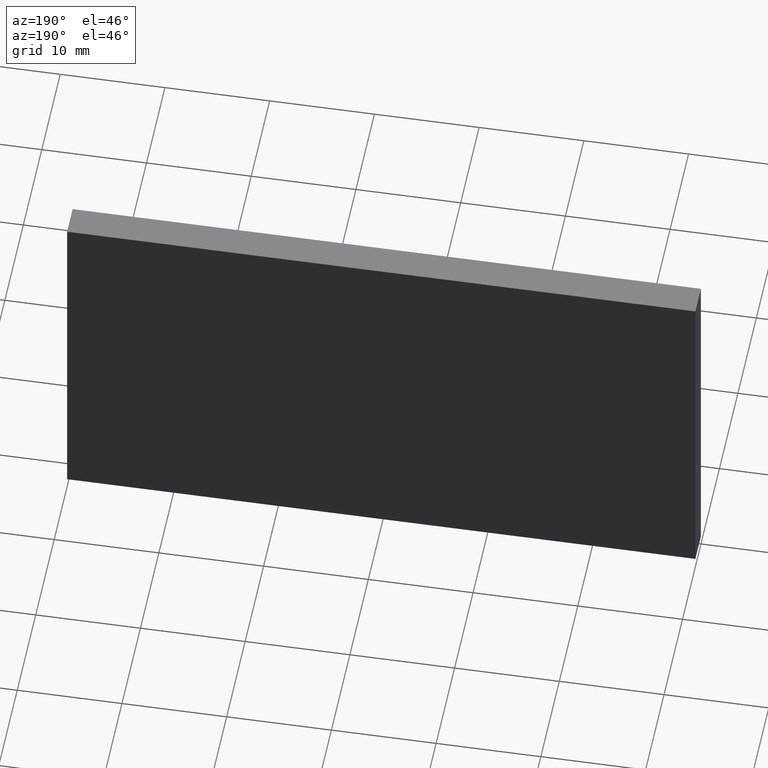
[diagram: clean part render]
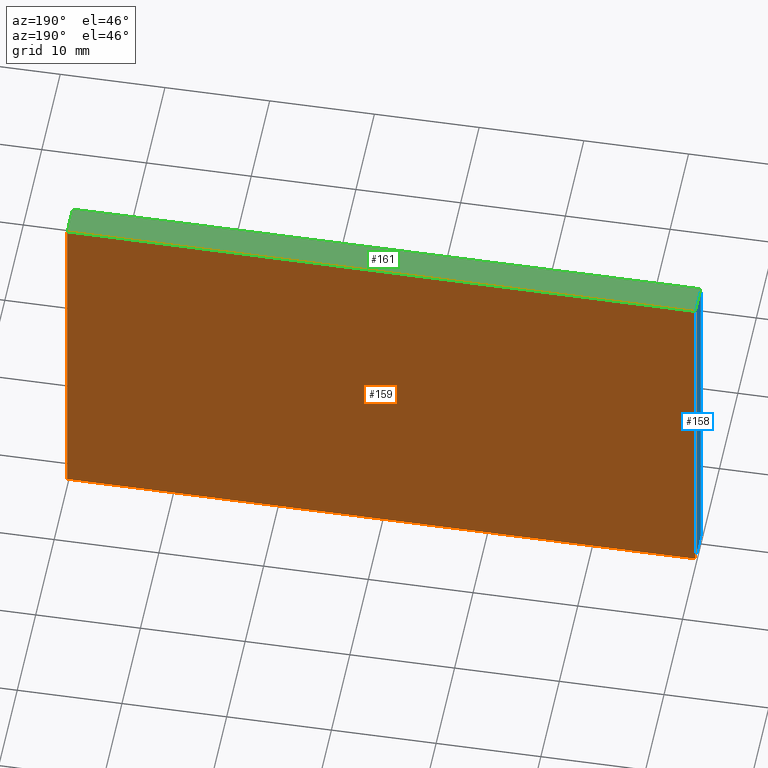
[diagram: same view with three faces highlighted in distinct colors, each labeled with its STEP entity id]
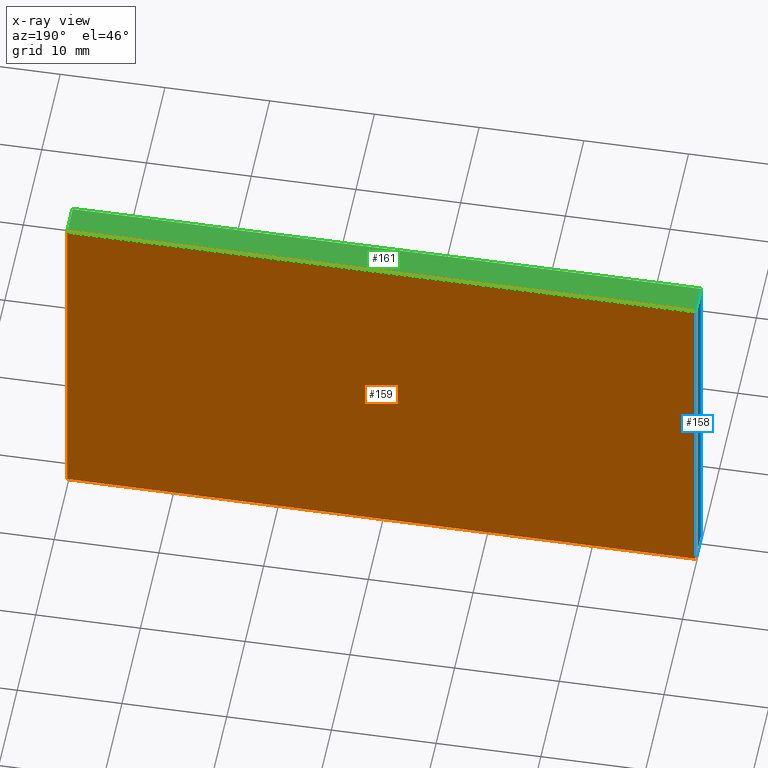
[diagram: x-ray of the same camera — body ghosted, the three highlighted faces saturated]
A machine part, auxiliary view with three faces highlighted in distinct colors.
The next image is the same camera in x-ray (body ghosted, the three faces saturated) — at least one of them is partly hidden behind the body in this view.
Their STEP definitions:

[orange] entity #159 — the highlighted planar face has unit normal (-0, 1, 0).
#8 = EDGE_CURVE ( 'NONE', #253, #226, #90, .T. ) ;
#20 = AXIS2_PLACEMENT_3D ( 'NONE', #184, #185, #196 ) ;
#22 = EDGE_CURVE ( 'NONE', #252, #253, #104, .T. ) ;
#27 = EDGE_CURVE ( 'NONE', #226, #240, #106, .T. ) ;
#31 = EDGE_CURVE ( 'NONE', #240, #252, #97, .T. ) ;
#77 = ORIENTED_EDGE ( 'NONE', *, *, #31, .T. ) ;
#79 = ORIENTED_EDGE ( 'NONE', *, *, #8, .T. ) ;
#89 = EDGE_LOOP ( 'NONE', ( #119, #77, #140, #79 ) ) ;
#90 = LINE ( 'NONE', #251, #96 ) ;
#96 = VECTOR ( 'NONE', #241, 1000.000000000000000 ) ;
#97 = LINE ( 'NONE', #258, #110 ) ;
#104 = LINE ( 'NONE', #217, #105 ) ;
#105 = VECTOR ( 'NONE', #218, 1000.000000000000000 ) ;
#106 = LINE ( 'NONE', #234, #107 ) ;
#107 = VECTOR ( 'NONE', #248, 1000.000000000000000 ) ;
#110 = VECTOR ( 'NONE', #229, 1000.000000000000000 ) ;
#119 = ORIENTED_EDGE ( 'NONE', *, *, #27, .T. ) ;
#130 = FACE_OUTER_BOUND ( 'NONE', #89, .T. ) ;
#140 = ORIENTED_EDGE ( 'NONE', *, *, #22, .T. ) ;
#159 = ADVANCED_FACE ( 'NONE', ( #130 ), #275, .T. ) ;
#174 = CARTESIAN_POINT ( 'NONE',  ( 30.00000000000000000, 3.000000000000000000, 16.75000000000000000 ) ) ;
#184 = CARTESIAN_POINT ( 'NONE',  ( 0.0000000000000000000, 3.000000000000000000, 0.0000000000000000000 ) ) ;
#185 = DIRECTION ( 'NONE',  ( -0.0000000000000000000, 1.000000000000000000, 0.0000000000000000000 ) ) ;
#196 = DIRECTION ( 'NONE',  ( 0.0000000000000000000, -0.0000000000000000000, 1.000000000000000000 ) ) ;
#206 = CARTESIAN_POINT ( 'NONE',  ( -30.00000000000000000, 3.000000000000000000, 16.75000000000000000 ) ) ;
#208 = CARTESIAN_POINT ( 'NONE',  ( -30.00000000000000000, 3.000000000000000000, -16.75000000000000000 ) ) ;
#209 = CARTESIAN_POINT ( 'NONE',  ( 30.00000000000000000, 3.000000000000000000, -16.75000000000000000 ) ) ;
#217 = CARTESIAN_POINT ( 'NONE',  ( -30.00000000000000000, 3.000000000000000000, 0.0000000000000000000 ) ) ;
#218 = DIRECTION ( 'NONE',  ( 0.0000000000000000000, -0.0000000000000000000, 1.000000000000000000 ) ) ;
#226 = VERTEX_POINT ( 'NONE', #174 ) ;
#229 = DIRECTION ( 'NONE',  ( -1.000000000000000000, -0.0000000000000000000, -0.0000000000000000000 ) ) ;
#234 = CARTESIAN_POINT ( 'NONE',  ( 30.00000000000000000, 3.000000000000000000, 0.0000000000000000000 ) ) ;
#240 = VERTEX_POINT ( 'NONE', #209 ) ;
#241 = DIRECTION ( 'NONE',  ( 1.000000000000000000, 0.0000000000000000000, 0.0000000000000000000 ) ) ;
#248 = DIRECTION ( 'NONE',  ( -0.0000000000000000000, 0.0000000000000000000, -1.000000000000000000 ) ) ;
#251 = CARTESIAN_POINT ( 'NONE',  ( 0.0000000000000000000, 3.000000000000000000, 16.75000000000000000 ) ) ;
#252 = VERTEX_POINT ( 'NONE', #208 ) ;
#253 = VERTEX_POINT ( 'NONE', #206 ) ;
#258 = CARTESIAN_POINT ( 'NONE',  ( 0.0000000000000000000, 3.000000000000000000, -16.75000000000000000 ) ) ;
#275 = PLANE ( 'NONE',  #20 ) ;

[blue] entity #158 — the highlighted planar face has unit normal (1, 0, 0).
#1 = EDGE_CURVE ( 'NONE', #252, #242, #93, .T. ) ;
#7 = AXIS2_PLACEMENT_3D ( 'NONE', #289, #180, #189 ) ;
#12 = EDGE_CURVE ( 'NONE', #257, #242, #91, .T. ) ;
#21 = EDGE_CURVE ( 'NONE', #257, #253, #102, .T. ) ;
#22 = EDGE_CURVE ( 'NONE', #252, #253, #104, .T. ) ;
#42 = FACE_OUTER_BOUND ( 'NONE', #86, .T. ) ;
#67 = ORIENTED_EDGE ( 'NONE', *, *, #21, .T. ) ;
#69 = ORIENTED_EDGE ( 'NONE', *, *, #12, .F. ) ;
#71 = ORIENTED_EDGE ( 'NONE', *, *, #1, .T. ) ;
#86 = EDGE_LOOP ( 'NONE', ( #67, #92, #71, #69 ) ) ;
#91 = LINE ( 'NONE', #264, #98 ) ;
#92 = ORIENTED_EDGE ( 'NONE', *, *, #22, .F. ) ;
#93 = LINE ( 'NONE', #225, #94 ) ;
#94 = VECTOR ( 'NONE', #254, 1000.000000000000000 ) ;
#98 = VECTOR ( 'NONE', #249, 1000.000000000000000 ) ;
#102 = LINE ( 'NONE', #259, #103 ) ;
#103 = VECTOR ( 'NONE', #292, 1000.000000000000000 ) ;
#104 = LINE ( 'NONE', #217, #105 ) ;
#105 = VECTOR ( 'NONE', #218, 1000.000000000000000 ) ;
#158 = ADVANCED_FACE ( 'NONE', ( #42 ), #186, .F. ) ;
#180 = DIRECTION ( 'NONE',  ( 1.000000000000000000, 0.0000000000000000000, 0.0000000000000000000 ) ) ;
#186 = PLANE ( 'NONE',  #7 ) ;
#189 = DIRECTION ( 'NONE',  ( 0.0000000000000000000, 0.0000000000000000000, -1.000000000000000000 ) ) ;
#206 = CARTESIAN_POINT ( 'NONE',  ( -30.00000000000000000, 3.000000000000000000, 16.75000000000000000 ) ) ;
#208 = CARTESIAN_POINT ( 'NONE',  ( -30.00000000000000000, 3.000000000000000000, -16.75000000000000000 ) ) ;
#217 = CARTESIAN_POINT ( 'NONE',  ( -30.00000000000000000, 3.000000000000000000, 0.0000000000000000000 ) ) ;
#218 = DIRECTION ( 'NONE',  ( 0.0000000000000000000, -0.0000000000000000000, 1.000000000000000000 ) ) ;
#225 = CARTESIAN_POINT ( 'NONE',  ( -30.00000000000000000, 3.000000000000000000, -16.75000000000000000 ) ) ;
#242 = VERTEX_POINT ( 'NONE', #283 ) ;
#249 = DIRECTION ( 'NONE',  ( 0.0000000000000000000, 0.0000000000000000000, -1.000000000000000000 ) ) ;
#252 = VERTEX_POINT ( 'NONE', #208 ) ;
#253 = VERTEX_POINT ( 'NONE', #206 ) ;
#254 = DIRECTION ( 'NONE',  ( 0.0000000000000000000, -1.000000000000000000, -0.0000000000000000000 ) ) ;
#257 = VERTEX_POINT ( 'NONE', #277 ) ;
#259 = CARTESIAN_POINT ( 'NONE',  ( -30.00000000000000000, 3.000000000000000000, 16.75000000000000000 ) ) ;
#264 = CARTESIAN_POINT ( 'NONE',  ( -30.00000000000000000, 0.0000000000000000000, -16.75000000000000000 ) ) ;
#277 = CARTESIAN_POINT ( 'NONE',  ( -30.00000000000000000, 0.0000000000000000000, 16.75000000000000000 ) ) ;
#283 = CARTESIAN_POINT ( 'NONE',  ( -30.00000000000000000, 0.0000000000000000000, -16.75000000000000000 ) ) ;
#289 = CARTESIAN_POINT ( 'NONE',  ( -30.00000000000000000, 3.000000000000000000, -16.75000000000000000 ) ) ;
#292 = DIRECTION ( 'NONE',  ( 0.0000000000000000000, 1.000000000000000000, 0.0000000000000000000 ) ) ;

[green] entity #161 — the highlighted planar face has unit normal (0, 0, -1).
#2 = AXIS2_PLACEMENT_3D ( 'NONE', #235, #282, #267 ) ;
#8 = EDGE_CURVE ( 'NONE', #253, #226, #90, .T. ) ;
#21 = EDGE_CURVE ( 'NONE', #257, #253, #102, .T. ) ;
#29 = EDGE_CURVE ( 'NONE', #255, #226, #108, .T. ) ;
#32 = EDGE_CURVE ( 'NONE', #255, #257, #111, .T. ) ;
#50 = ORIENTED_EDGE ( 'NONE', *, *, #29, .T. ) ;
#70 = ORIENTED_EDGE ( 'NONE', *, *, #8, .F. ) ;
#72 = ORIENTED_EDGE ( 'NONE', *, *, #32, .F. ) ;
#81 = ORIENTED_EDGE ( 'NONE', *, *, #21, .F. ) ;
#84 = EDGE_LOOP ( 'NONE', ( #50, #70, #81, #72 ) ) ;
#90 = LINE ( 'NONE', #251, #96 ) ;
#96 = VECTOR ( 'NONE', #241, 1000.000000000000000 ) ;
#102 = LINE ( 'NONE', #259, #103 ) ;
#103 = VECTOR ( 'NONE', #292, 1000.000000000000000 ) ;
#108 = LINE ( 'NONE', #245, #109 ) ;
#109 = VECTOR ( 'NONE', #233, 1000.000000000000000 ) ;
#111 = LINE ( 'NONE', #244, #112 ) ;
#112 = VECTOR ( 'NONE', #221, 1000.000000000000000 ) ;
#144 = FACE_OUTER_BOUND ( 'NONE', #84, .T. ) ;
#161 = ADVANCED_FACE ( 'NONE', ( #144 ), #169, .F. ) ;
#169 = PLANE ( 'NONE',  #2 ) ;
#174 = CARTESIAN_POINT ( 'NONE',  ( 30.00000000000000000, 3.000000000000000000, 16.75000000000000000 ) ) ;
#205 = CARTESIAN_POINT ( 'NONE',  ( 30.00000000000000000, 0.0000000000000000000, 16.75000000000000000 ) ) ;
#206 = CARTESIAN_POINT ( 'NONE',  ( -30.00000000000000000, 3.000000000000000000, 16.75000000000000000 ) ) ;
#221 = DIRECTION ( 'NONE',  ( -1.000000000000000000, 0.0000000000000000000, -0.0000000000000000000 ) ) ;
#226 = VERTEX_POINT ( 'NONE', #174 ) ;
#233 = DIRECTION ( 'NONE',  ( 0.0000000000000000000, 1.000000000000000000, -0.0000000000000000000 ) ) ;
#235 = CARTESIAN_POINT ( 'NONE',  ( -30.00000000000000000, 3.000000000000000000, 16.75000000000000000 ) ) ;
#241 = DIRECTION ( 'NONE',  ( 1.000000000000000000, 0.0000000000000000000, 0.0000000000000000000 ) ) ;
#244 = CARTESIAN_POINT ( 'NONE',  ( -30.00000000000000000, 0.0000000000000000000, 16.75000000000000000 ) ) ;
#245 = CARTESIAN_POINT ( 'NONE',  ( 30.00000000000000000, 3.000000000000000000, 16.75000000000000000 ) ) ;
#251 = CARTESIAN_POINT ( 'NONE',  ( 0.0000000000000000000, 3.000000000000000000, 16.75000000000000000 ) ) ;
#253 = VERTEX_POINT ( 'NONE', #206 ) ;
#255 = VERTEX_POINT ( 'NONE', #205 ) ;
#257 = VERTEX_POINT ( 'NONE', #277 ) ;
#259 = CARTESIAN_POINT ( 'NONE',  ( -30.00000000000000000, 3.000000000000000000, 16.75000000000000000 ) ) ;
#267 = DIRECTION ( 'NONE',  ( -1.000000000000000000, 0.0000000000000000000, -0.0000000000000000000 ) ) ;
#277 = CARTESIAN_POINT ( 'NONE',  ( -30.00000000000000000, 0.0000000000000000000, 16.75000000000000000 ) ) ;
#282 = DIRECTION ( 'NONE',  ( 0.0000000000000000000, 0.0000000000000000000, -1.000000000000000000 ) ) ;
#292 = DIRECTION ( 'NONE',  ( 0.0000000000000000000, 1.000000000000000000, 0.0000000000000000000 ) ) ;